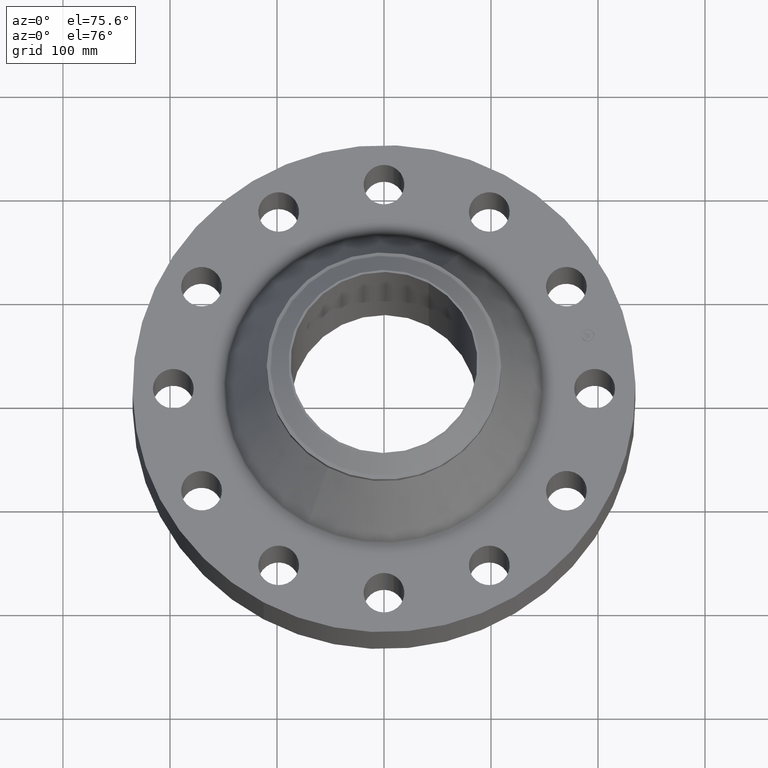
[diagram: clean part render]
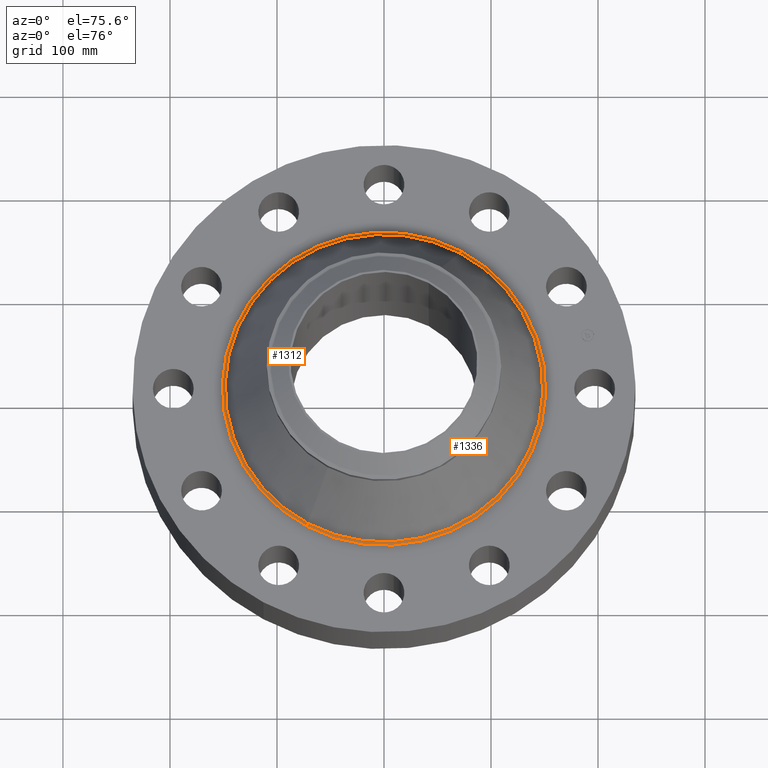
[diagram: same view with one multi-face feature highlighted, each face labeled with its STEP entity id]
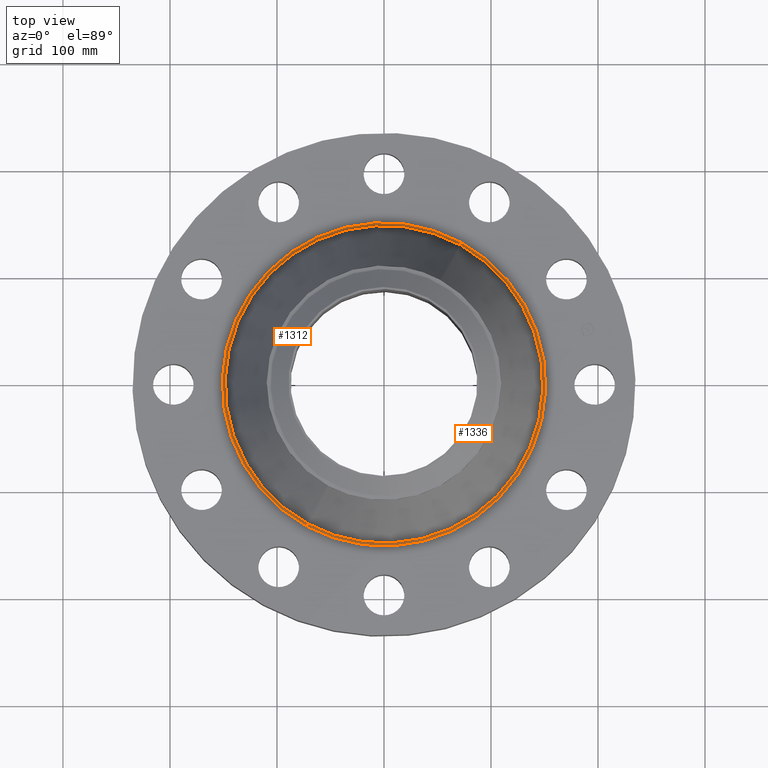
[diagram: same view with one multi-face feature highlighted, each face labeled with its STEP entity id]
A machine part, auxiliary view. The highlighted faces form ONE feature: a constant-radius fillet chain: 2 tangent blend faces with common blend radius 3.048 mm. The faces share edges in the B-rep.
A second angle (top view) of the same feature is appended — it is thin or edge-on in the first view.
Their STEP definitions:
[1] entity #1312 (Torus):
#404=AXIS2_PLACEMENT_3D('Circle Axis2P3D',#402,#403,$) ;
#1285=AXIS2_PLACEMENT_3D('Torus Axis2P3D',#1282,#1283,#1284) ;
#1289=AXIS2_PLACEMENT_3D('Circle Axis2P3D',#1287,#1288,$) ;
#1296=AXIS2_PLACEMENT_3D('Circle Axis2P3D',#1294,#1295,$) ;
#1303=AXIS2_PLACEMENT_3D('Circle Axis2P3D',#1301,#1302,$) ;
#402=CARTESIAN_POINT('Axis2P3D Location',(-1.1189649382E-015,-3.99918068914E-012,2.50000000001)) ;
#406=CARTESIAN_POINT('Vertex',(-2.85211672578,-5.22076464744,2.50000000001)) ;
#408=CARTESIAN_POINT('Vertex',(2.85211672579,5.22076464744,2.50000000001)) ;
#1282=CARTESIAN_POINT('Axis2P3D Location',(0.,0.,2.62000000001)) ;
#1287=CARTESIAN_POINT('Axis2P3D Location',(-2.85211672579,-5.22076464744,2.62000000001)) ;
#1291=CARTESIAN_POINT('Vertex',(-2.80070118971,-5.12664913995,2.56616029439)) ;
#1294=CARTESIAN_POINT('Axis2P3D Location',(0.,0.,2.56616029439)) ;
#1298=CARTESIAN_POINT('Vertex',(2.80070118972,5.12664913995,2.56616029439)) ;
#1301=CARTESIAN_POINT('Axis2P3D Location',(2.85211672579,5.22076464744,2.62000000001)) ;
#403=DIRECTION('Axis2P3D Direction',(0.,0.,-0.0393700787402)) ;
#1283=DIRECTION('Axis2P3D Direction',(0.,0.,-0.0393700787402)) ;
#1284=DIRECTION('Axis2P3D XDirection',(-0.0188750212049,-0.0345504945626,0.)) ;
#1288=DIRECTION('Axis2P3D Direction',(0.0345504945626,-0.0188750212049,0.)) ;
#1295=DIRECTION('Axis2P3D Direction',(-0.,0.,-0.0393700787402)) ;
#1302=DIRECTION('Axis2P3D Direction',(-0.0345504945626,0.0188750212049,0.)) ;
#1307=ORIENTED_EDGE('',*,*,#410,.F.) ;
#1308=ORIENTED_EDGE('',*,*,#1293,.T.) ;
#1309=ORIENTED_EDGE('',*,*,#1300,.T.) ;
#1310=ORIENTED_EDGE('',*,*,#1305,.F.) ;
#1312=ADVANCED_FACE('PartBody',(#1311),#1286,.F.) ;
#405=CIRCLE('generated circle',#404,5.94902961174) ;
#1290=CIRCLE('generated circle',#1289,0.12) ;
#1297=CIRCLE('generated circle',#1296,5.8417855625) ;
#1304=CIRCLE('generated circle',#1303,0.12) ;
#1286=TOROIDAL_SURFACE('homeo Torus',#1285,5.94902961175,0.12) ;
#410=EDGE_CURVE('',#407,#409,#405,.T.) ;
#1293=EDGE_CURVE('',#407,#1292,#1290,.T.) ;
#1300=EDGE_CURVE('',#1292,#1299,#1297,.T.) ;
#1305=EDGE_CURVE('',#409,#1299,#1304,.T.) ;
#1306=EDGE_LOOP('',(#1307,#1308,#1309,#1310)) ;
#1311=FACE_OUTER_BOUND('',#1306,.T.) ;
#407=VERTEX_POINT('',#406) ;
#409=VERTEX_POINT('',#408) ;
#1292=VERTEX_POINT('',#1291) ;
#1299=VERTEX_POINT('',#1298) ;
[2] entity #1336 (Torus):
#413=AXIS2_PLACEMENT_3D('Circle Axis2P3D',#411,#412,$) ;
#1289=AXIS2_PLACEMENT_3D('Circle Axis2P3D',#1287,#1288,$) ;
#1303=AXIS2_PLACEMENT_3D('Circle Axis2P3D',#1301,#1302,$) ;
#1323=AXIS2_PLACEMENT_3D('Torus Axis2P3D',#1320,#1321,#1322) ;
#1327=AXIS2_PLACEMENT_3D('Circle Axis2P3D',#1325,#1326,$) ;
#406=CARTESIAN_POINT('Vertex',(-2.85211672578,-5.22076464744,2.50000000001)) ;
#408=CARTESIAN_POINT('Vertex',(2.85211672579,5.22076464744,2.50000000001)) ;
#411=CARTESIAN_POINT('Axis2P3D Location',(1.1189649382E-015,-3.99918068914E-012,2.50000000001)) ;
#1287=CARTESIAN_POINT('Axis2P3D Location',(-2.85211672579,-5.22076464744,2.62000000001)) ;
#1291=CARTESIAN_POINT('Vertex',(-2.80070118971,-5.12664913995,2.56616029439)) ;
#1298=CARTESIAN_POINT('Vertex',(2.80070118972,5.12664913995,2.56616029439)) ;
#1301=CARTESIAN_POINT('Axis2P3D Location',(2.85211672579,5.22076464744,2.62000000001)) ;
#1320=CARTESIAN_POINT('Axis2P3D Location',(0.,0.,2.62000000001)) ;
#1325=CARTESIAN_POINT('Axis2P3D Location',(0.,0.,2.56616029439)) ;
#412=DIRECTION('Axis2P3D Direction',(0.,0.,-0.0393700787402)) ;
#1288=DIRECTION('Axis2P3D Direction',(0.0345504945626,-0.0188750212049,0.)) ;
#1302=DIRECTION('Axis2P3D Direction',(-0.0345504945626,0.0188750212049,0.)) ;
#1321=DIRECTION('Axis2P3D Direction',(0.,0.,-0.0393700787402)) ;
#1322=DIRECTION('Axis2P3D XDirection',(0.0188750212049,0.0345504945626,0.)) ;
#1326=DIRECTION('Axis2P3D Direction',(-0.,0.,-0.0393700787402)) ;
#1331=ORIENTED_EDGE('',*,*,#415,.F.) ;
#1332=ORIENTED_EDGE('',*,*,#1305,.T.) ;
#1333=ORIENTED_EDGE('',*,*,#1329,.T.) ;
#1334=ORIENTED_EDGE('',*,*,#1293,.F.) ;
#1336=ADVANCED_FACE('PartBody',(#1335),#1324,.F.) ;
#414=CIRCLE('generated circle',#413,5.94902961174) ;
#1290=CIRCLE('generated circle',#1289,0.12) ;
#1304=CIRCLE('generated circle',#1303,0.12) ;
#1328=CIRCLE('generated circle',#1327,5.8417855625) ;
#1324=TOROIDAL_SURFACE('homeo Torus',#1323,5.94902961175,0.12) ;
#415=EDGE_CURVE('',#409,#407,#414,.T.) ;
#1293=EDGE_CURVE('',#407,#1292,#1290,.T.) ;
#1305=EDGE_CURVE('',#409,#1299,#1304,.T.) ;
#1329=EDGE_CURVE('',#1299,#1292,#1328,.T.) ;
#1330=EDGE_LOOP('',(#1331,#1332,#1333,#1334)) ;
#1335=FACE_OUTER_BOUND('',#1330,.T.) ;
#407=VERTEX_POINT('',#406) ;
#409=VERTEX_POINT('',#408) ;
#1292=VERTEX_POINT('',#1291) ;
#1299=VERTEX_POINT('',#1298) ;